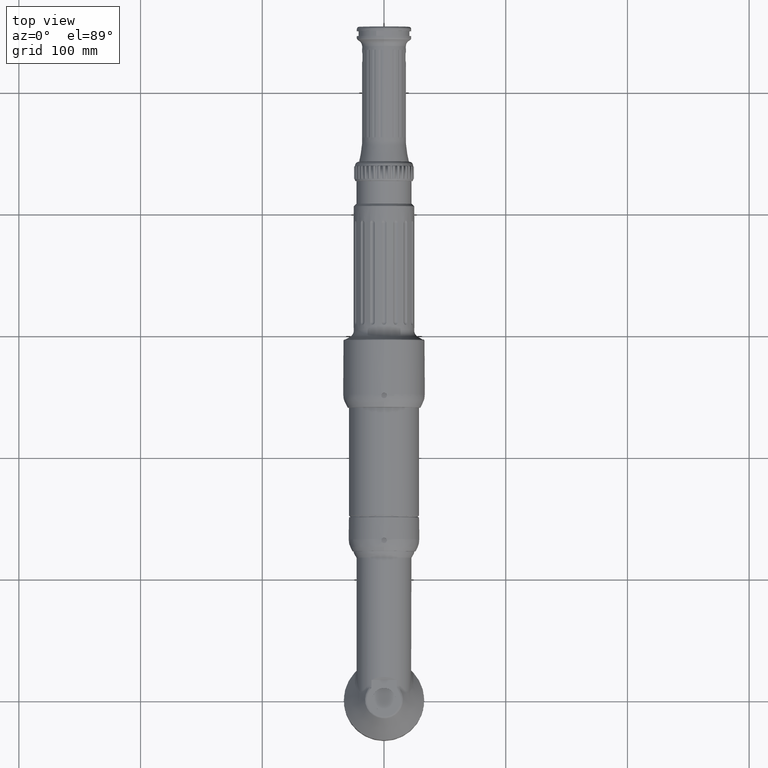
[diagram: clean part render]
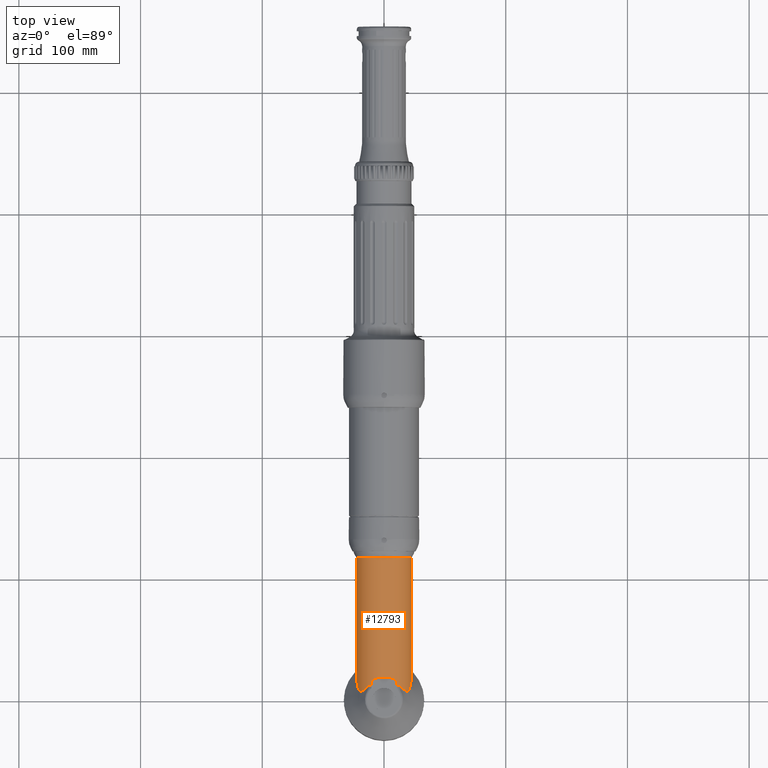
[diagram: same view with one face highlighted and labeled with its STEP entity id]
A machine part, top view. The second image highlights one B-rep face of the part: STEP entity #12793.
In plain terms, the highlighted cylindrical surface (bore or boss wall) has radius 22.5 mm, axis along (-0, 1, 0).
Its self-contained STEP definition (entity closure, byte-faithful):
#551=FACE_BOUND('',#3385,.T.);
#817=ELLIPSE('',#13646,31.8198051533946,22.5);
#920=LINE('',#19757,#1598);
#921=LINE('',#19761,#1599);
#1598=VECTOR('',#15415,10.);
#1599=VECTOR('',#15418,10.);
#2276=CYLINDRICAL_SURFACE('',#13643,22.5);
#2554=FACE_OUTER_BOUND('',#3384,.T.);
#3384=EDGE_LOOP('',(#8407));
#3385=EDGE_LOOP('',(#8408,#8409,#8410,#8411,#8412,#8413,#8414,#8415,#8416,
#8417));
#4481=CIRCLE('',#13642,67.2065179771233);
#4482=CIRCLE('',#13644,22.5);
#4483=CIRCLE('',#13645,67.2065179771501);
#5322=B_SPLINE_CURVE_WITH_KNOTS('',3,(#19683,#19684,#19685,#19686,#19687,
#19688,#19689,#19690,#19691,#19692,#19693),.UNSPECIFIED.,.F.,.F.,(4,1,1,
1,1,1,1,1,4),(3.61552223743247,4.48551693275512,5.06778824732547,5.65005956189582,
5.94119521918099,6.23233087646616,6.52346653375134,6.81460219103651,7.39687350560686),
 .UNSPECIFIED.);
#5325=B_SPLINE_CURVE_WITH_KNOTS('',3,(#19723,#19724,#19725,#19726,#19727,
#19728,#19729,#19730,#19731,#19732),.UNSPECIFIED.,.F.,.F.,(4,1,1,1,1,1,
1,4),(13.0475800132938,14.0887317569962,15.1298835006986,16.1710352444011,
17.2121869881035,18.2533387318059,19.2944904755083,20.3356422192108),
 .UNSPECIFIED.);
#5326=B_SPLINE_CURVE_WITH_KNOTS('',3,(#19736,#19737,#19738,#19739,#19740,
#19741,#19742,#19743,#19744,#19745,#19746,#19747),.UNSPECIFIED.,.F.,.F.,
(4,1,1,1,1,1,1,1,1,4),(2.83381824027543E-15,0.29119751203949,0.582395024078977,
0.873592536118464,1.16479004815795,1.45598756019744,1.74718507223693,2.3295800963159,
2.91197512039487,3.78135625952723),.UNSPECIFIED.);
#5327=B_SPLINE_CURVE_WITH_KNOTS('',3,(#19749,#19750,#19751,#19752,#19753,
#19754,#19755),.UNSPECIFIED.,.F.,.F.,(4,1,1,1,4),(5.40220239433464,5.42924273385086,
5.57228134097516,5.71531994809945,6.00139716234804),.UNSPECIFIED.);
#5328=B_SPLINE_CURVE_WITH_KNOTS('',3,(#19762,#19763,#19764,#19765,#19766,
#19767,#19768),.UNSPECIFIED.,.F.,.F.,(4,1,1,1,4),(12.002794324696,12.1458329318203,
12.4319101460689,12.5749487531932,12.6022076655345),.UNSPECIFIED.);
#5449=VERTEX_POINT('',#19681);
#5450=VERTEX_POINT('',#19682);
#5452=VERTEX_POINT('',#19704);
#5453=VERTEX_POINT('',#19720);
#5454=VERTEX_POINT('',#19722);
#5455=VERTEX_POINT('',#19733);
#5456=VERTEX_POINT('',#19735);
#5457=VERTEX_POINT('',#19748);
#5458=VERTEX_POINT('',#19756);
#5459=VERTEX_POINT('',#19758);
#5460=VERTEX_POINT('',#19760);
#6644=EDGE_CURVE('',#5449,#5450,#5322,.T.);
#6648=EDGE_CURVE('',#5452,#5449,#4481,.T.);
#6649=EDGE_CURVE('',#5453,#5453,#4482,.T.);
#6650=EDGE_CURVE('',#5454,#5452,#5325,.T.);
#6651=EDGE_CURVE('',#5455,#5454,#4483,.T.);
#6652=EDGE_CURVE('',#5456,#5455,#5326,.T.);
#6653=EDGE_CURVE('',#5457,#5456,#5327,.T.);
#6654=EDGE_CURVE('',#5457,#5458,#920,.T.);
#6655=EDGE_CURVE('',#5458,#5459,#817,.T.);
#6656=EDGE_CURVE('',#5459,#5460,#921,.T.);
#6657=EDGE_CURVE('',#5450,#5460,#5328,.T.);
#8407=ORIENTED_EDGE('',*,*,#6649,.F.);
#8408=ORIENTED_EDGE('',*,*,#6644,.F.);
#8409=ORIENTED_EDGE('',*,*,#6648,.F.);
#8410=ORIENTED_EDGE('',*,*,#6650,.F.);
#8411=ORIENTED_EDGE('',*,*,#6651,.F.);
#8412=ORIENTED_EDGE('',*,*,#6652,.F.);
#8413=ORIENTED_EDGE('',*,*,#6653,.F.);
#8414=ORIENTED_EDGE('',*,*,#6654,.T.);
#8415=ORIENTED_EDGE('',*,*,#6655,.T.);
#8416=ORIENTED_EDGE('',*,*,#6656,.T.);
#8417=ORIENTED_EDGE('',*,*,#6657,.F.);
#12793=ADVANCED_FACE('',(#2554,#551),#2276,.T.);
#13642=AXIS2_PLACEMENT_3D('',#19718,#15407,#15408);
#13643=AXIS2_PLACEMENT_3D('',#19719,#15409,#15410);
#13644=AXIS2_PLACEMENT_3D('',#19721,#15411,#15412);
#13645=AXIS2_PLACEMENT_3D('',#19734,#15413,#15414);
#13646=AXIS2_PLACEMENT_3D('',#19759,#15416,#15417);
#15407=DIRECTION('center_axis',(-0.0787883181886972,-0.57648363253499,-0.813301310915124));
#15408=DIRECTION('ref_axis',(0.992777582649463,0.0286663162188489,-0.116494264679123));
#15409=DIRECTION('center_axis',(-1.22464679914735E-16,1.,0.));
#15410=DIRECTION('ref_axis',(-1.,0.,0.));
#15411=DIRECTION('center_axis',(-1.22464679914735E-16,1.,0.));
#15412=DIRECTION('ref_axis',(1.,1.22464679914735E-16,0.));
#15413=DIRECTION('center_axis',(0.0787883181886967,-0.576483632534993,-0.813301310915122));
#15414=DIRECTION('ref_axis',(-0.989835347629664,0.0516564427956307,-0.132505081036783));
#15415=DIRECTION('',(-1.22464679914735E-16,1.,0.));
#15416=DIRECTION('center_axis',(0.,0.707106781186547,-0.707106781186548));
#15417=DIRECTION('ref_axis',(-8.65956056235494E-17,0.707106781186548,0.707106781186547));
#15418=DIRECTION('',(1.22464679914735E-16,-1.,0.));
#19681=CARTESIAN_POINT('',(22.2217770008222,24.3965699828357,-3.5274107962821));
#19682=CARTESIAN_POINT('',(14.0909520575689,10.4537452975907,17.5412391270199));
#19683=CARTESIAN_POINT('Ctrl Pts',(22.2222505612021,24.3961690718954,-3.52806098949653));
#19684=CARTESIAN_POINT('Ctrl Pts',(22.4623848680214,22.2346365122917,-2.02035522582699));
#19685=CARTESIAN_POINT('Ctrl Pts',(22.6054296417601,18.6178083844227,0.530281000726873));
#19686=CARTESIAN_POINT('Ctrl Pts',(22.1866025824454,13.6765762938887,4.17774844925413));
#19687=CARTESIAN_POINT('Ctrl Pts',(21.4817762106475,10.3178592145662,6.87333354379054));
#19688=CARTESIAN_POINT('Ctrl Pts',(20.5745920140433,8.02738258476331,9.17680813626596));
#19689=CARTESIAN_POINT('Ctrl Pts',(19.6352401394545,6.76962389996542,11.064570302937));
#19690=CARTESIAN_POINT('Ctrl Pts',(18.3745739676844,6.68994388752551,13.0549718141678));
#19691=CARTESIAN_POINT('Ctrl Pts',(16.5649562196718,8.03959522280292,15.3371225091546));
#19692=CARTESIAN_POINT('Ctrl Pts',(15.132373335686,9.50290092402487,16.7046609813474));
#19693=CARTESIAN_POINT('Ctrl Pts',(14.0909520575689,10.4537452975907,17.5412391270199));
#19704=CARTESIAN_POINT('',(22.0240396300708,25.94165633792,-4.60344201365363));
#19718=CARTESIAN_POINT('Origin',(-44.499347454794,22.4700066865357,4.30176309710717));
#19719=CARTESIAN_POINT('Origin',(-7.14396932516027E-15,58.3349364905389,
0.));
#19720=CARTESIAN_POINT('',(-22.5,116.669872981078,0.));
#19721=CARTESIAN_POINT('Origin',(-1.42879386503205E-14,116.669872981078,
0.));
#19722=CARTESIAN_POINT('',(-22.0240396300707,25.9416563379201,-4.60344201365403));
#19723=CARTESIAN_POINT('Ctrl Pts',(-22.0240396300707,25.9416563379201,-4.60344201365403));
#19724=CARTESIAN_POINT('Ctrl Pts',(-21.4092216723218,26.6120982357462,-7.54488778978796));
#19725=CARTESIAN_POINT('Ctrl Pts',(-19.0592073736895,29.0673574358688,-12.9203321511403));
#19726=CARTESIAN_POINT('Ctrl Pts',(-13.0491997539119,33.2236787121185,-18.999276418997));
#19727=CARTESIAN_POINT('Ctrl Pts',(-4.74991118020113,36.1160882216794,-22.647645907264));
#19728=CARTESIAN_POINT('Ctrl Pts',(4.74737531604434,36.112653702668,-22.6465711040123));
#19729=CARTESIAN_POINT('Ctrl Pts',(13.0512602448244,33.2237257724109,-18.9950426958788));
#19730=CARTESIAN_POINT('Ctrl Pts',(19.0604666037261,29.0654667301926,-12.9221106122576));
#19731=CARTESIAN_POINT('Ctrl Pts',(21.409348494815,26.6119599393417,-7.54428103866453));
#19732=CARTESIAN_POINT('Ctrl Pts',(22.0240396300708,25.94165633792,-4.60344201365363));
#19733=CARTESIAN_POINT('',(-22.221777000826,24.3965699828021,-3.52741079625869));
#19734=CARTESIAN_POINT('Origin',(44.499347454821,22.4700066865395,4.30176309710786));
#19735=CARTESIAN_POINT('',(-14.090952057569,10.4537452975906,17.5412391270199));
#19736=CARTESIAN_POINT('Ctrl Pts',(-14.090952057569,10.4537452975906,17.5412391270198));
#19737=CARTESIAN_POINT('Ctrl Pts',(-14.6117733269397,9.97822210249143,17.1228611843829));
#19738=CARTESIAN_POINT('Ctrl Pts',(-15.611189194519,9.02112565268162,16.2447182260805));
#19739=CARTESIAN_POINT('Ctrl Pts',(-17.0184133449065,7.69833726963554,14.7661049307546));
#19740=CARTESIAN_POINT('Ctrl Pts',(-18.3755240092699,6.69256689810239,13.0528843848052));
#19741=CARTESIAN_POINT('Ctrl Pts',(-19.6361839280235,6.7636898130089,11.0643273403543));
#19742=CARTESIAN_POINT('Ctrl Pts',(-20.5754754495138,8.02871017431818,9.17490091925572));
#19743=CARTESIAN_POINT('Ctrl Pts',(-21.4824934331044,10.3186151478406,6.87151003525049));
#19744=CARTESIAN_POINT('Ctrl Pts',(-22.1871331348545,13.6805618911437,4.17496036524919));
#19745=CARTESIAN_POINT('Ctrl Pts',(-22.6053558214238,18.6202740676907,0.528413963025379));
#19746=CARTESIAN_POINT('Ctrl Pts',(-22.4622049552941,22.2360761682353,-2.02141039918622));
#19747=CARTESIAN_POINT('Ctrl Pts',(-22.2222449410701,24.3961585586575,-3.52807517556164));
#19748=CARTESIAN_POINT('',(-10.307764088194,11.0187783552309,19.9999999875535));
#19749=CARTESIAN_POINT('Ctrl Pts',(-10.3085747728791,11.0173857972455,19.9993309147372));
#19750=CARTESIAN_POINT('Ctrl Pts',(-10.3634258889313,11.0628817067954,19.9710997183622));
#19751=CARTESIAN_POINT('Ctrl Pts',(-10.7163061713882,11.3273841259487,19.7876604849979));
#19752=CARTESIAN_POINT('Ctrl Pts',(-11.4319653958451,11.5522114160548,19.3904236993587));
#19753=CARTESIAN_POINT('Ctrl Pts',(-12.7146713291888,11.4388894087831,18.5894571121935));
#19754=CARTESIAN_POINT('Ctrl Pts',(-13.579288696095,10.9209070875791,17.9522604832613));
#19755=CARTESIAN_POINT('Ctrl Pts',(-14.090952057569,10.4537452975906,17.5412391270198));
#19756=CARTESIAN_POINT('',(-10.3077640640442,16.,20.));
#19757=CARTESIAN_POINT('',(-10.3077640640442,58.3349364905389,20.));
#19758=CARTESIAN_POINT('',(10.3077640640442,16.,20.));
#19759=CARTESIAN_POINT('Origin',(4.89858719658938E-16,-3.99999999999999,
0.));
#19760=CARTESIAN_POINT('',(10.3077640640521,11.0187783156022,19.9999999999959));
#19761=CARTESIAN_POINT('',(10.3077640640442,58.3349364905389,20.));
#19762=CARTESIAN_POINT('Ctrl Pts',(14.0909520575689,10.4537452975907,17.5412391270199));
#19763=CARTESIAN_POINT('Ctrl Pts',(13.8351203768318,10.687326192585,17.7467498051407));
#19764=CARTESIAN_POINT('Ctrl Pts',(13.0236370560937,11.2888186746892,18.3720824482381));
#19765=CARTESIAN_POINT('Ctrl Pts',(11.7609588037452,11.6512004985934,19.2082813370419));
#19766=CARTESIAN_POINT('Ctrl Pts',(10.7160554571342,11.326630537779,19.7878203656713));
#19767=CARTESIAN_POINT('Ctrl Pts',(10.3626462218377,11.061835503092,19.9714963602443));
#19768=CARTESIAN_POINT('Ctrl Pts',(10.3073629912072,11.0159353248947,19.9999442834469));